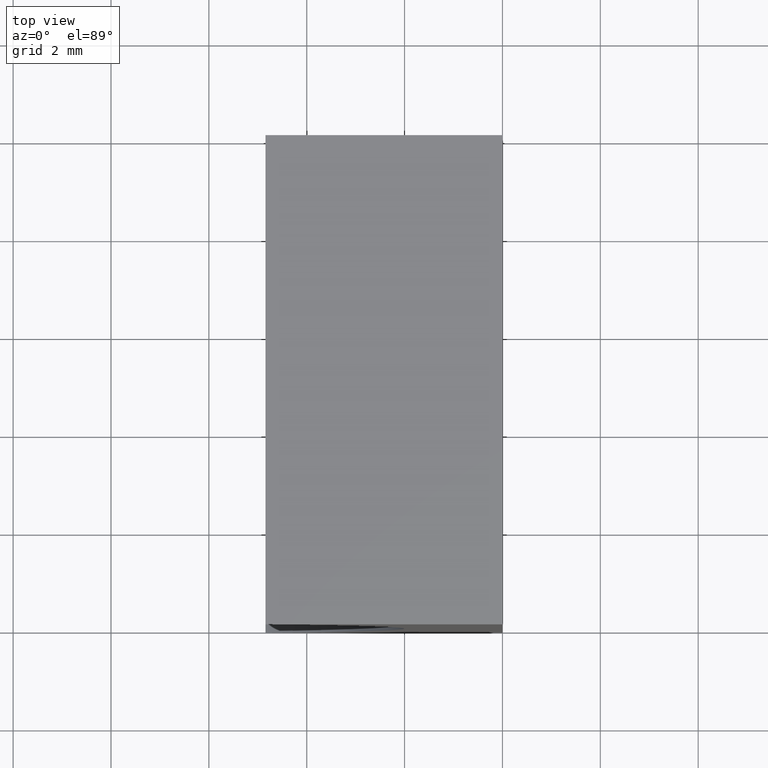
[diagram: clean part render]
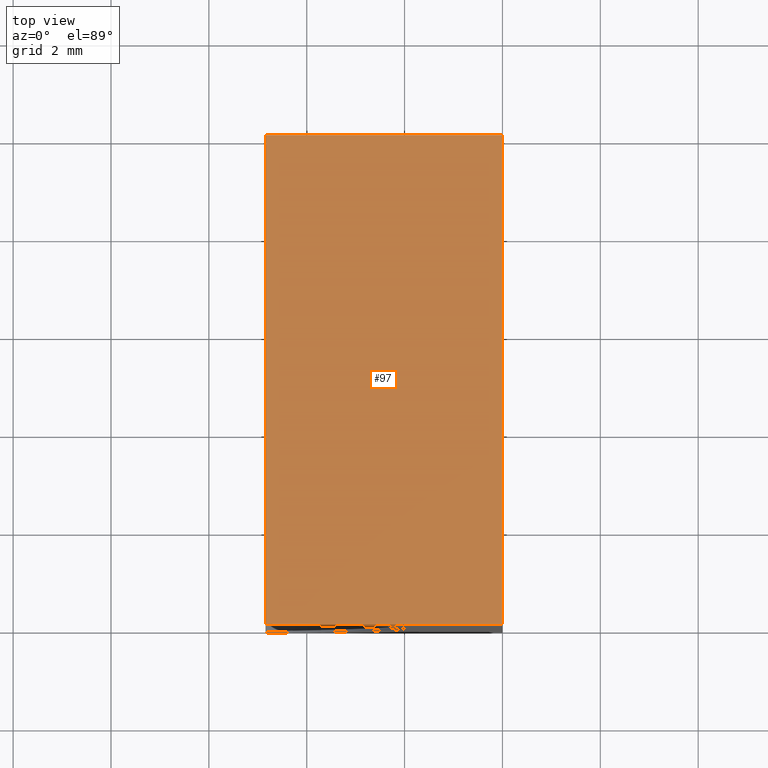
[diagram: same view with one face highlighted and labeled with its STEP entity id]
A machine part, top view. The second image highlights one B-rep face of the part: STEP entity #97.
In plain terms, the highlighted planar face has unit normal (0, 0, -1).
Its self-contained STEP definition (entity closure, byte-faithful):
#12 = DIRECTION ( 'NONE',  ( 1.000000000000000000, -0.0000000000000000000, -0.0000000000000000000 ) ) ;
#22 = CARTESIAN_POINT ( 'NONE',  ( 6.123233995736766300E-016, 0.0000000000000000000, 10.00000000000000000 ) ) ;
#31 = EDGE_CURVE ( 'NONE', #100, #129, #177, .T. ) ;
#37 = CARTESIAN_POINT ( 'NONE',  ( 6.123233995736766300E-016, 10.00000000000000000, 10.00000000000000000 ) ) ;
#40 = DIRECTION ( 'NONE',  ( -1.000000000000000000, 0.0000000000000000000, -0.0000000000000000000 ) ) ;
#41 = DIRECTION ( 'NONE',  ( -0.0000000000000000000, -1.000000000000000000, -0.0000000000000000000 ) ) ;
#42 = PLANE ( 'NONE',  #101 ) ;
#47 = VECTOR ( 'NONE', #90, 1000.000000000000000 ) ;
#52 = EDGE_LOOP ( 'NONE', ( #160, #157, #105, #203 ) ) ;
#59 = VERTEX_POINT ( 'NONE', #169 ) ;
#74 = EDGE_CURVE ( 'NONE', #59, #100, #86, .T. ) ;
#79 = LINE ( 'NONE', #102, #47 ) ;
#82 = FACE_OUTER_BOUND ( 'NONE', #52, .T. ) ;
#86 = LINE ( 'NONE', #171, #174 ) ;
#88 = LINE ( 'NONE', #37, #176 ) ;
#90 = DIRECTION ( 'NONE',  ( -0.0000000000000000000, -1.000000000000000000, -0.0000000000000000000 ) ) ;
#91 = DIRECTION ( 'NONE',  ( 0.0000000000000000000, 0.0000000000000000000, -1.000000000000000000 ) ) ;
#95 = VECTOR ( 'NONE', #132, 1000.000000000000000 ) ;
#97 = ADVANCED_FACE ( 'NONE', ( #82 ), #42, .F. ) ;
#100 = VERTEX_POINT ( 'NONE', #154 ) ;
#101 = AXIS2_PLACEMENT_3D ( 'NONE', #119, #91, #40 ) ;
#102 = CARTESIAN_POINT ( 'NONE',  ( 6.123233995736766300E-016, 10.00000000000000000, 10.00000000000000000 ) ) ;
#105 = ORIENTED_EDGE ( 'NONE', *, *, #128, .F. ) ;
#109 = VERTEX_POINT ( 'NONE', #204 ) ;
#114 = CARTESIAN_POINT ( 'NONE',  ( 6.123233995736766300E-016, 0.0000000000000000000, 10.00000000000000000 ) ) ;
#117 = EDGE_CURVE ( 'NONE', #109, #129, #79, .T. ) ;
#119 = CARTESIAN_POINT ( 'NONE',  ( 6.123233995736766300E-016, 10.00000000000000000, 10.00000000000000000 ) ) ;
#128 = EDGE_CURVE ( 'NONE', #59, #109, #88, .T. ) ;
#129 = VERTEX_POINT ( 'NONE', #114 ) ;
#132 = DIRECTION ( 'NONE',  ( 1.000000000000000000, -0.0000000000000000000, -0.0000000000000000000 ) ) ;
#154 = CARTESIAN_POINT ( 'NONE',  ( -4.841342584317557000, 0.0000000000000000000, 10.00000000000000000 ) ) ;
#157 = ORIENTED_EDGE ( 'NONE', *, *, #117, .F. ) ;
#160 = ORIENTED_EDGE ( 'NONE', *, *, #31, .T. ) ;
#169 = CARTESIAN_POINT ( 'NONE',  ( -4.841342584317557000, 10.00000000000000000, 10.00000000000000000 ) ) ;
#171 = CARTESIAN_POINT ( 'NONE',  ( -4.841342584317557000, 10.00000000000000000, 10.00000000000000000 ) ) ;
#174 = VECTOR ( 'NONE', #41, 1000.000000000000000 ) ;
#176 = VECTOR ( 'NONE', #12, 1000.000000000000000 ) ;
#177 = LINE ( 'NONE', #22, #95 ) ;
#203 = ORIENTED_EDGE ( 'NONE', *, *, #74, .T. ) ;
#204 = CARTESIAN_POINT ( 'NONE',  ( 6.123233995736766300E-016, 10.00000000000000000, 10.00000000000000000 ) ) ;